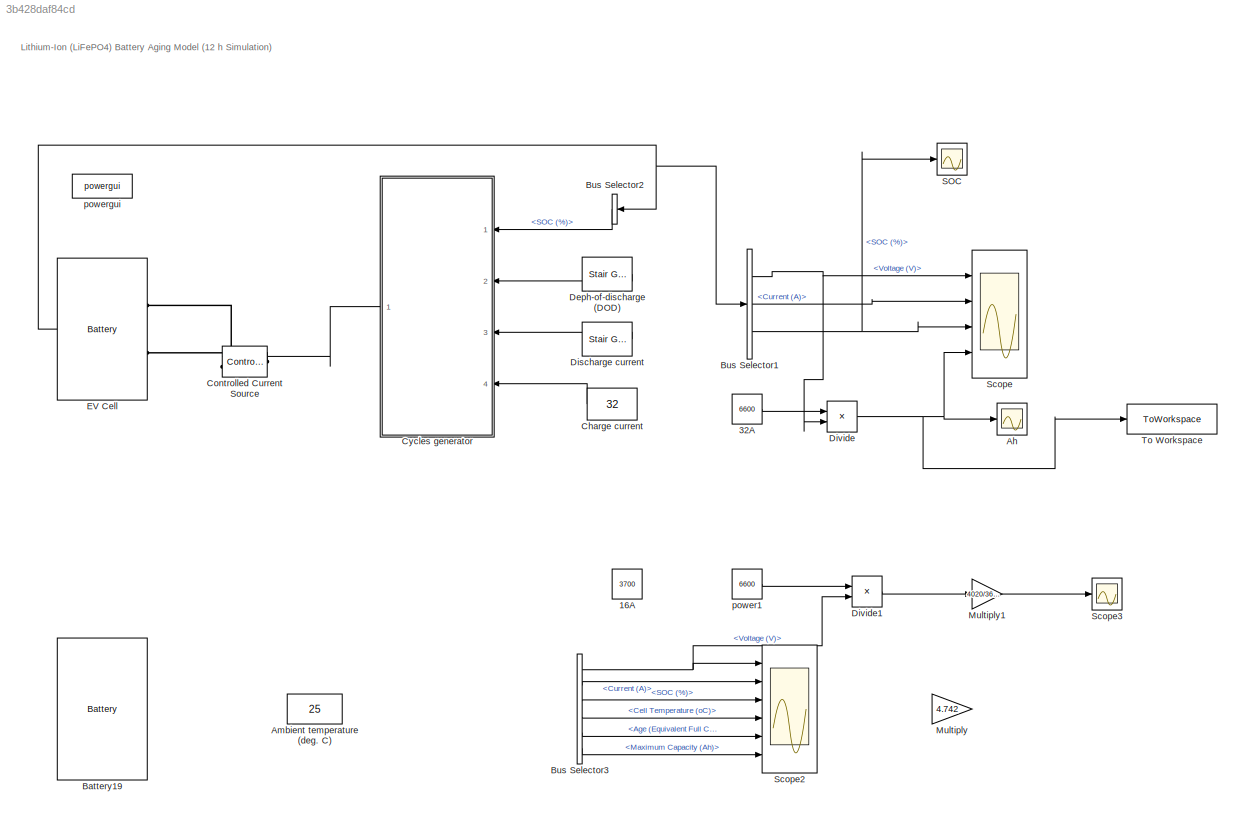
MODEL slx_3b428daf84cd
KIND model
CONFIG AbsTol = auto
CONFIG EnableMultiTasking = on
CONFIG FixedStep = auto
CONFIG MaxStep = auto
CONFIG MinStep = auto
CONFIG RelTol = 1e-3
CONFIG SampleTimeConstraint = Unconstrained
CONFIG SolverName = ode23tb
CONFIG StartTime = 0.0
CONFIG StopTime = 3600*24
BLOCK [Constant] 16A
  Commented = on
  Value = 3700
BLOCK [Constant] 32A
  Value = 6600
BLOCK [Scope] Ah
  Floating = off
  NumInputPorts = 1
  Ports = [1]
  ScopeSpecificationString = Simulink.scopes.TimeScopeBlockCfg('CurrentConfiguration', extmgr.ConfigurationSet(extmgr.Configuration('Core','General UI',true,'FigureColor',[1 1 1]),extmgr.Configuration('Core','Source UI',true),extmgr.Configuration('Sources','WiredSimulink',true,'DataLoggingVariableName','ScopeData1','DataLogging',true,'DataLoggingMaxPoints','17070'),extmgr.Configuration('Visuals','Time Domain',true,'Serialized...<+1943ch>
BLOCK [Constant] Ambient temperature (deg. C)
  Commented = on
  NameLocation = top
  Value = 25
BLOCK [Reference] Battery19  REF=electricdrivelib/Extra Sources/Battery
  Commented = on
  Ports = [1, 1, 0, 0, 0, 2]
  SourceBlock = electricdrivelib/Extra Sources/Battery
  SourceProductBaseCode = PS
  SourceType = Battery
BLOCK [BusSelector] Bus Selector1
  OutputSignals = Voltage (V),Current (A),SOC (%)
  Ports = [1, 3]
BLOCK [BusSelector] Bus Selector2
  NameLocation = top
  OutputSignals = SOC (%)
  Ports = [1, 1]
BLOCK [BusSelector] Bus Selector3
  Commented = on
  OutputSignals = Voltage (V),Current (A),SOC (%),Cell Temperature (oC),Age (Equivalent Full Cycles),Maximum Capacity  (Ah)
  Ports = [1, 6]
BLOCK [Constant] Charge current
  NameLocation = top
  Value = 32
BLOCK [Reference] Controlled Current Source  REF=powerlib/Electrical
Sources/Controlled Current Source
  NameLocation = top
  Ports = [1, 0, 0, 0, 0, 1, 1]
  SourceBlock = powerlib/Electrical\nSources/Controlled Current Source
  SourceProductBaseCode = PS
  SourceType = Controlled Current Source
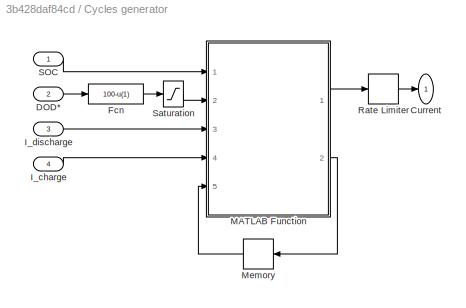
BLOCK [SubSystem] Cycles generator
  Ports = [4, 1]
  RequestExecContextInheritance = off
BLOCK [Outport] Cycles generator/Current
  NameLocation = top
  VectorParamsAs1DForOutWhenUnconnected = off
BLOCK [Inport] Cycles generator/DOD*
  Port = 2
BLOCK [Fcn] Cycles generator/Fcn
  Expr = 100-u(1)
BLOCK [Inport] Cycles generator/I_charge
  Port = 4
BLOCK [Inport] Cycles generator/I_discharge
  Port = 3
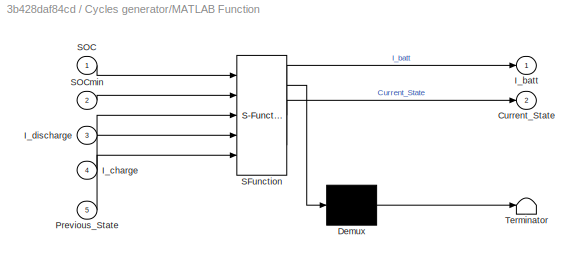
BLOCK [SubSystem] Cycles generator/MATLAB Function
  ErrorFcn = Stateflow.Translate.translate
  PermitHierarchicalResolution = ExplicitOnly
  Ports = [5, 2]
  RequestExecContextInheritance = off
  SFBlockType = MATLAB Function
  TreatAsAtomicUnit = on
BLOCK [Demux] Cycles generator/MATLAB Function/ Demux 
  Outputs = 1
  Ports = [1, 1]
BLOCK [S-Function] Cycles generator/MATLAB Function/ SFunction 
  EnableBusSupport = on
  FunctionName = sf_sfun
  PortCounts = [5 3]
  Ports = [5, 3]
  SFcnIsStateOwnerBlock = off
  SFunctionDeploymentMode = off
  Tag = Stateflow S-Function 2
BLOCK [Terminator] Cycles generator/MATLAB Function/ Terminator 
BLOCK [Outport] Cycles generator/MATLAB Function/Current_State
  Port = 2
  VectorParamsAs1DForOutWhenUnconnected = off
BLOCK [Outport] Cycles generator/MATLAB Function/I_batt
  VectorParamsAs1DForOutWhenUnconnected = off
BLOCK [Inport] Cycles generator/MATLAB Function/I_charge
  Port = 4
BLOCK [Inport] Cycles generator/MATLAB Function/I_discharge
  Port = 3
BLOCK [Inport] Cycles generator/MATLAB Function/Previous_State
  Port = 5
BLOCK [Inport] Cycles generator/MATLAB Function/SOC
BLOCK [Inport] Cycles generator/MATLAB Function/SOCmin
  Port = 2
BLOCK [Memory] Cycles generator/Memory
  InitialCondition = 1
BLOCK [RateLimiter] Cycles generator/Rate Limiter
  FallingSlewLimit = -1000
  RisingSlewLimit = 1000
  SampleTimeMode = inherited
BLOCK [Inport] Cycles generator/SOC
BLOCK [Saturate] Cycles generator/Saturation
  LowerLimit = 1
  UpperLimit = 98
BLOCK [Reference] Deph-of-discharge (DOD)  REF=powerlib_meascontrol/Pulse & Signal
Generators/Stair
Generator
  NameLocation = top
  Ports = [0, 1]
  SourceBlock = powerlib_meascontrol/Pulse & Signal\nGenerators/Stair\nGenerator
  SourceProductBaseCode = PS
  SourceType = Stair Generator
BLOCK [Reference] Discharge current  REF=powerlib_meascontrol/Pulse & Signal
Generators/Stair
Generator
  NameLocation = top
  Ports = [0, 1]
  SourceBlock = powerlib_meascontrol/Pulse & Signal\nGenerators/Stair\nGenerator
  SourceProductBaseCode = PS
  SourceType = Stair Generator
BLOCK [Product] Divide
  Inputs = */
  Ports = [2, 1]
BLOCK [Product] Divide1
  Commented = on
  Inputs = */
  Ports = [2, 1]
BLOCK [Reference] EV Cell  REF=electricdrivelib/Extra Sources/Battery
  Ports = [0, 1, 0, 0, 0, 2]
  SourceBlock = electricdrivelib/Extra Sources/Battery
  SourceProductBaseCode = PS
  SourceType = Battery
BLOCK [Gain] Multiply
  Commented = on
  Gain = 4.742
BLOCK [Gain] Multiply1
  Commented = on
  Gain = 4020/3600
BLOCK [Scope] SOC
  Floating = off
  NumInputPorts = 1
  Ports = [1]
  ScopeSpecificationString = Simulink.scopes.TimeScopeBlockCfg('CurrentConfiguration', extmgr.ConfigurationSet(extmgr.Configuration('Core','General UI',true,'FigureColor',[1 1 1]),extmgr.Configuration('Core','Source UI',true),extmgr.Configuration('Sources','WiredSimulink',true,'DataLoggingVariableName','ScopeData4','DataLogging',true,'DataLoggingMaxPoints','17070'),extmgr.Configuration('Visuals','Time Domain',true,'Serialized...<+1933ch>
BLOCK [Scope] Scope
  Floating = off
  NumInputPorts = 4
  Ports = [4]
  ScopeSpecificationString = Simulink.scopes.TimeScopeBlockCfg('CurrentConfiguration', extmgr.ConfigurationSet(extmgr.Configuration('Core','General UI',true,'FigureColor',[1 1 1]),extmgr.Configuration('Core','Source UI',true),extmgr.Configuration('Sources','WiredSimulink',true),extmgr.Configuration('Visuals','Time Domain',true,'SerializedDisplays',{struct('MinYLimReal','233.70318','MaxYLimReal','268.32459','YLabelReal','','Mi...<+5988ch>
BLOCK [Scope] Scope2
  Commented = on
  Floating = off
  NumInputPorts = 6
  Ports = [6]
  ScopeSpecificationString = Simulink.scopes.TimeScopeBlockCfg('CurrentConfiguration', extmgr.ConfigurationSet(extmgr.Configuration('Core','General UI',true),extmgr.Configuration('Core','Source UI',true),extmgr.Configuration('Sources','WiredSimulink',true,'DataLoggingVariableName','ScopeData2'),extmgr.Configuration('Visuals','Time Domain',true,'SerializedDisplays',{struct('MinYLimReal','11.01199','MaxYLimReal','16.07266','YLa...<+4930ch>
BLOCK [Scope] Scope3
  Commented = on
  Floating = off
  NumInputPorts = 1
  Ports = [1]
  ScopeSpecificationString = Simulink.scopes.TimeScopeBlockCfg('CurrentConfiguration', extmgr.ConfigurationSet(extmgr.Configuration('Core','General UI',true),extmgr.Configuration('Core','Source UI',true),extmgr.Configuration('Sources','WiredSimulink',true,'DataLoggingVariableName','ScopeData3'),extmgr.Configuration('Visuals','Time Domain',true,'SerializedDisplays',{struct('MinYLimReal','484.10765','MaxYLimReal','610.39682','Y...<+1465ch>
BLOCK [ToWorkspace] To Workspace
  FixptAsFi = on
  MaxDataPoints = inf
  Ports = [1]
  SampleTime = 900
  Save2DSignal = 2-D array (concatenate along first dimension)
  VariableName = Ah
BLOCK [Constant] power1
  Commented = on
  Value = 6600
BLOCK [Reference] powergui  REF=powerlib/powergui
  Ports = []
  SourceBlock = powerlib/powergui
  SourceProductBaseCode = PS
  SourceType = PSB option menu block
ANNOTATION (root): Lithium-Ion (LiFePO4) Battery Aging Model (12 h Simulation)
LINE 32A:1 -> Divide:1
NET Bus Selector1:1 -> Divide:2, Scope:1
LINE Bus Selector1:2 -> Scope:2
NET Bus Selector1:3 -> SOC:1, Scope:3
LINE Bus Selector2:1 -> Cycles generator:1
NET Bus Selector3:1 -> Divide1:2, Scope2:1
LINE Bus Selector3:2 -> Scope2:2
LINE Bus Selector3:3 -> Scope2:3
LINE Bus Selector3:4 -> Scope2:4
LINE Bus Selector3:5 -> Scope2:5
LINE Bus Selector3:6 -> Scope2:6
LINE Charge current:1 -> Cycles generator:4
LINE Cycles generator/DOD*:1 -> Cycles generator/Fcn:1
LINE Cycles generator/Fcn:1 -> Cycles generator/Saturation:1
LINE Cycles generator/I_charge:1 -> Cycles generator/MATLAB Function:4
LINE Cycles generator/I_discharge:1 -> Cycles generator/MATLAB Function:3
LINE Cycles generator/MATLAB Function:1 -> Cycles generator/Rate Limiter:1
LINE Cycles generator/MATLAB Function:2 -> Cycles generator/Memory:1
LINE Cycles generator/Memory:1 -> Cycles generator/MATLAB Function:5
LINE Cycles generator/Rate Limiter:1 -> Cycles generator/Current:1
LINE Cycles generator/SOC:1 -> Cycles generator/MATLAB Function:1
LINE Cycles generator/Saturation:1 -> Cycles generator/MATLAB Function:2
LINE Cycles generator:1 -> Controlled Current Source:1
LINE Deph-of-discharge (DOD):1 -> Cycles generator:2
LINE Discharge current:1 -> Cycles generator:3
LINE Divide1:1 -> Multiply1:1
NET Divide:1 -> Ah:1, Scope:4, To Workspace:1
NET EV Cell:1 -> Bus Selector1:1, Bus Selector2:1
LINE Multiply1:1 -> Scope3:1
LINE power1:1 -> Divide1:1
PLINE Controlled Current Source:LConn1 -- EV Cell:LConn1
PLINE Controlled Current Source:RConn1 -- EV Cell:LConn2
note: NET lines group one-source signal fan-out (src -> all destinations, sorted); 1:1 wires keep LINE
CHART Cycles generator/MATLAB Function states=1 transitions=1
  STATE_LABEL 'eML_blk_kernel()'
  STATE_LABEL 'SCRIPT:\nfunction [I_batt,Current_State] = fcn(SOC,SOCmin,I_discharge,I_charge,Previous_State)\n%cycle generator\nCurrent_State=Previous_State;\nif(Previous_State==0 && SOC>=79)\n    Current_State=1;\nend\nif(Previous_State==1 && SOC<=SOCmin)\n    Current_State=0;\nend\nif (Previous_State==1)\n    I_batt=I_discharge;\nelse\n    I_batt=-I_charge;\nend\n'
CHART  states=0 transitions=0
